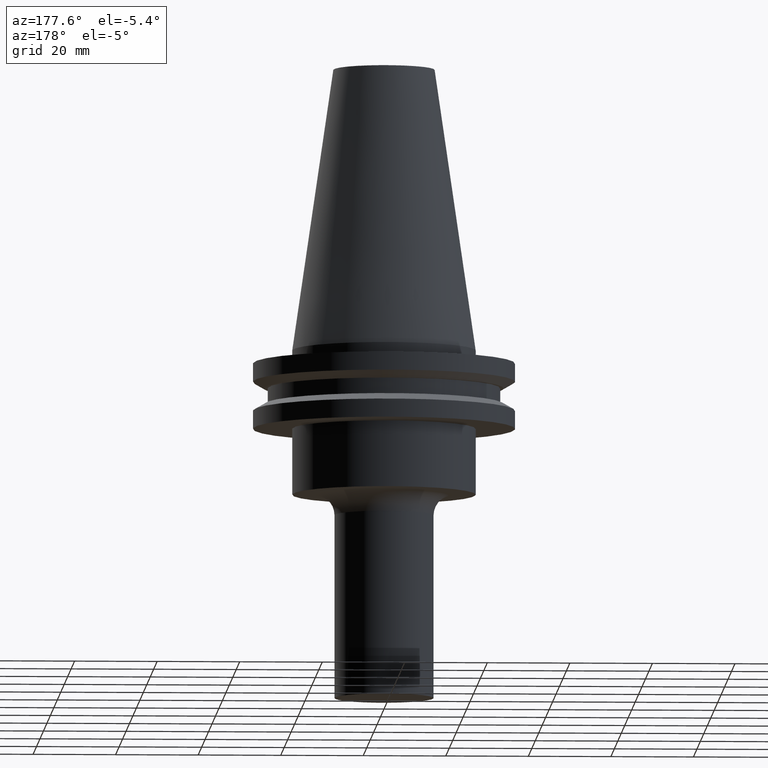
[diagram: clean part render]
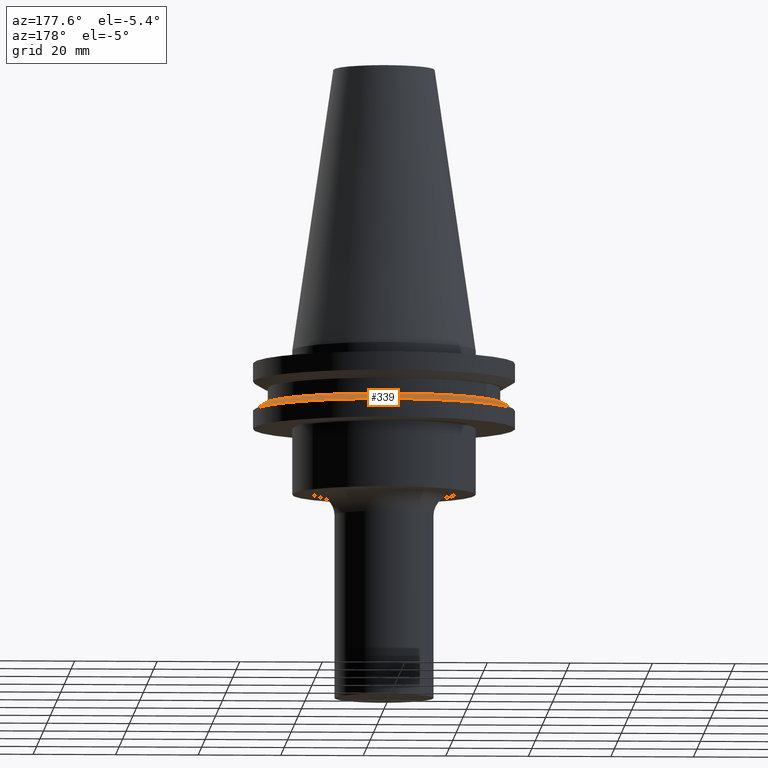
[diagram: same view with one face highlighted and labeled with its STEP entity id]
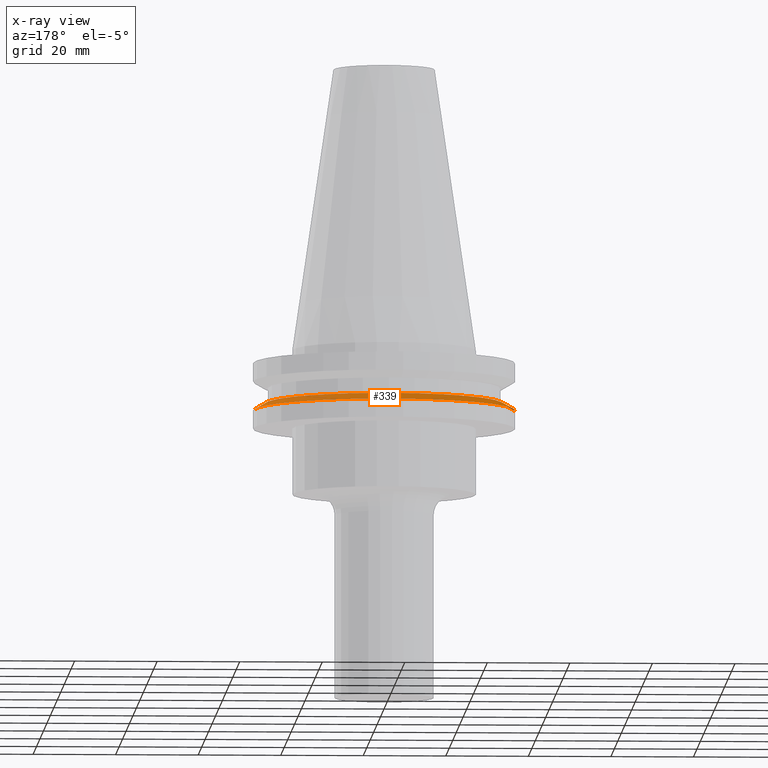
[diagram: x-ray of the same camera — body ghosted, the highlighted face saturated]
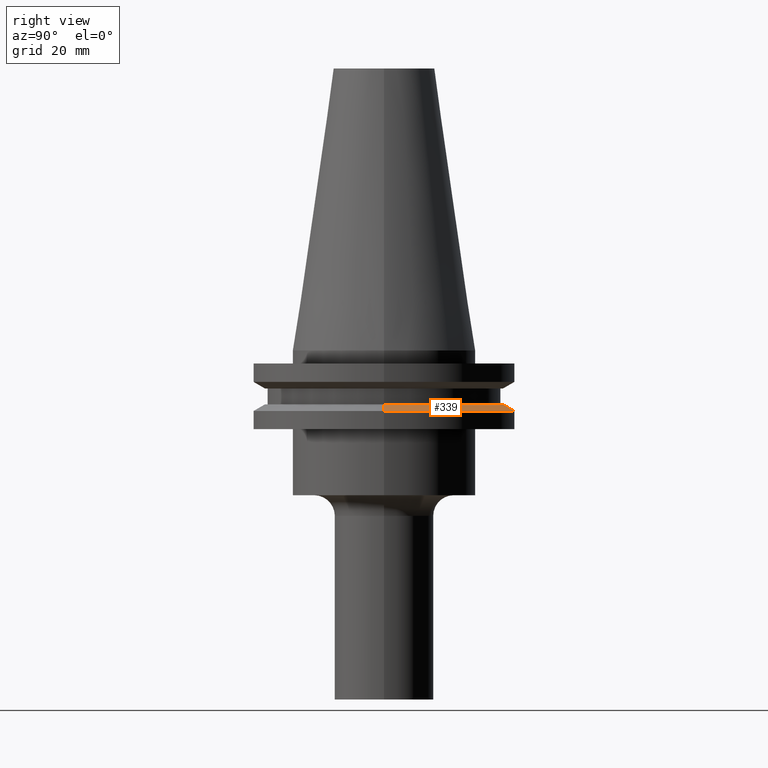
[diagram: same view with one face highlighted and labeled with its STEP entity id]
A machine part, auxiliary view. The second image highlights one B-rep face of the part: STEP entity #339.
The next image is the same camera in x-ray: the body ghosted, the highlighted face saturated — about 0% of this face is hidden behind the body in this view.
A second angle (right view) of the same face is appended — the face is thin or edge-on in the first view.
In plain terms, the highlighted conical surface has half-angle 60 deg.
Its self-contained STEP definition (entity closure, byte-faithful):
#46 = VERTEX_POINT ( 'NONE', #453 ) ;
#48 = CARTESIAN_POINT ( 'NONE',  ( -31.75000000000000000, 0.000000000000000000, -14.65472339340266572 ) ) ;
#137 = VERTEX_POINT ( 'NONE', #694 ) ;
#140 = DIRECTION ( 'NONE',  ( 1.000000000000000000, 0.000000000000000000, 0.000000000000000000 ) ) ;
#154 = EDGE_CURVE ( 'NONE', #696, #137, #272, .T. ) ;
#155 = CARTESIAN_POINT ( 'NONE',  ( 0.000000000000000000, 0.000000000000000000, -14.65472339340266572 ) ) ;
#156 = EDGE_LOOP ( 'NONE', ( #344, #327, #263, #373 ) ) ;
#201 = CARTESIAN_POINT ( 'NONE',  ( 0.000000000000000000, 0.000000000000000000, -14.65472339340266572 ) ) ;
#216 = DIRECTION ( 'NONE',  ( -0.8660254037844387076, 0.000000000000000000, -0.4999999999999998890 ) ) ;
#225 = CONICAL_SURFACE ( 'NONE', #382, 31.75000000000000000, 1.047197551196597853 ) ;
#226 = VECTOR ( 'NONE', #395, 1000.000000000000000 ) ;
#229 = CARTESIAN_POINT ( 'NONE',  ( 31.75000000000000000, 0.000000000000000000, -14.65472339340266572 ) ) ;
#263 = ORIENTED_EDGE ( 'NONE', *, *, #154, .T. ) ;
#272 = CIRCLE ( 'NONE', #301, 31.75000000000000000 ) ;
#282 = VERTEX_POINT ( 'NONE', #676 ) ;
#301 = AXIS2_PLACEMENT_3D ( 'NONE', #155, #396, #140 ) ;
#320 = DIRECTION ( 'NONE',  ( -1.000000000000000000, 0.000000000000000000, 0.000000000000000000 ) ) ;
#327 = ORIENTED_EDGE ( 'NONE', *, *, #686, .T. ) ;
#339 = ADVANCED_FACE ( 'NONE', ( #736 ), #225, .T. ) ;
#344 = ORIENTED_EDGE ( 'NONE', *, *, #597, .F. ) ;
#349 = LINE ( 'NONE', #406, #226 ) ;
#353 = CARTESIAN_POINT ( 'NONE',  ( 0.000000000000000000, 0.000000000000000000, -13.05499999999999794 ) ) ;
#373 = ORIENTED_EDGE ( 'NONE', *, *, #704, .F. ) ;
#382 = AXIS2_PLACEMENT_3D ( 'NONE', #201, #390, #320 ) ;
#390 = DIRECTION ( 'NONE',  ( 0.000000000000000000, 0.000000000000000000, -1.000000000000000000 ) ) ;
#395 = DIRECTION ( 'NONE',  ( 0.8660254037844387076, 1.060575238724906915E-16, -0.4999999999999998890 ) ) ;
#396 = DIRECTION ( 'NONE',  ( -0.000000000000000000, -0.000000000000000000, 1.000000000000000000 ) ) ;
#406 = CARTESIAN_POINT ( 'NONE',  ( 31.75000000000000000, 3.888253587292846476E-15, -14.65472339340266572 ) ) ;
#449 = VECTOR ( 'NONE', #216, 1000.000000000000000 ) ;
#453 = CARTESIAN_POINT ( 'NONE',  ( 28.97919780457008088, 3.718590885307660666E-15, -13.05499999999999794 ) ) ;
#527 = DIRECTION ( 'NONE',  ( 1.000000000000000000, 0.000000000000000000, 0.000000000000000000 ) ) ;
#589 = CIRCLE ( 'NONE', #623, 28.97919780457008088 ) ;
#597 = EDGE_CURVE ( 'NONE', #46, #282, #589, .T. ) ;
#623 = AXIS2_PLACEMENT_3D ( 'NONE', #353, #648, #527 ) ;
#648 = DIRECTION ( 'NONE',  ( -0.000000000000000000, -0.000000000000000000, 1.000000000000000000 ) ) ;
#676 = CARTESIAN_POINT ( 'NONE',  ( -28.97919780457008088, 0.000000000000000000, -13.05499999999999794 ) ) ;
#686 = EDGE_CURVE ( 'NONE', #46, #696, #349, .T. ) ;
#694 = CARTESIAN_POINT ( 'NONE',  ( -31.75000000000000000, 3.888253587292846476E-15, -14.65472339340266572 ) ) ;
#696 = VERTEX_POINT ( 'NONE', #229 ) ;
#704 = EDGE_CURVE ( 'NONE', #282, #137, #711, .T. ) ;
#711 = LINE ( 'NONE', #48, #449 ) ;
#736 = FACE_OUTER_BOUND ( 'NONE', #156, .T. ) ;